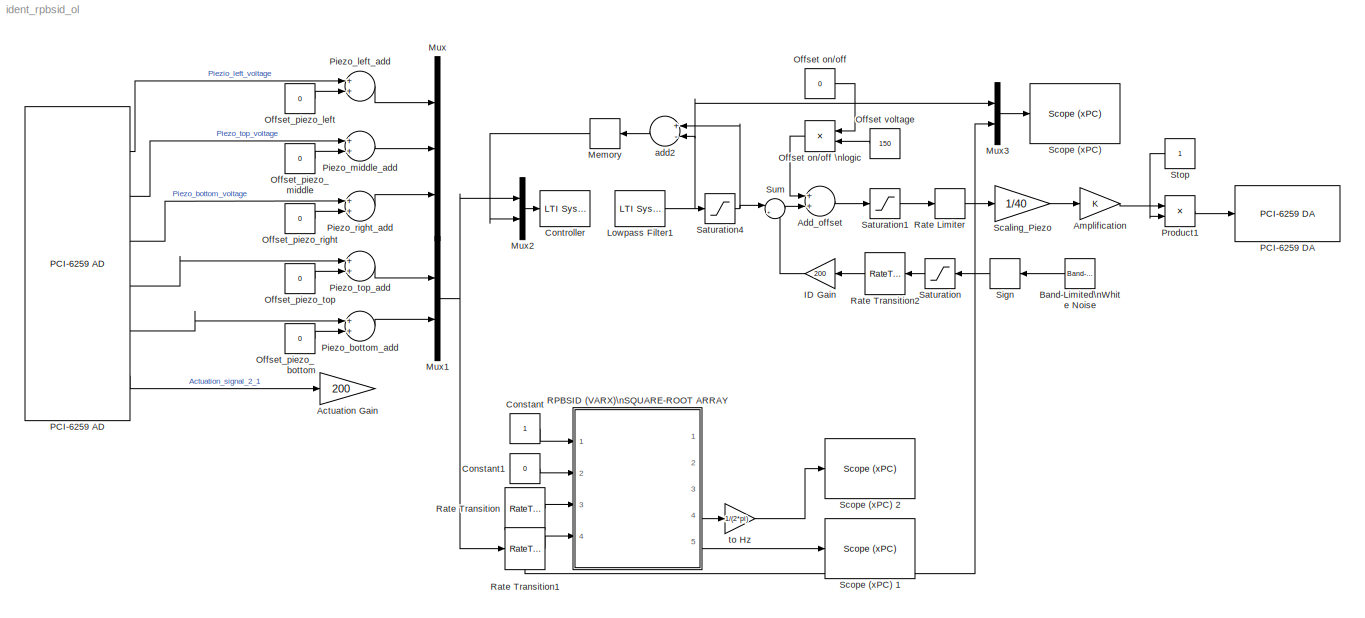
MODEL ident_rpbsid_ol
KIND model
BLOCK [Gain] Actuation Gain
  Gain = 200
  OutDataType = sfix(16)
  OutDataTypeMode = Inherit via internal rule
  OutDataTypeStr = Inherit: Inherit via internal rule
  OutScaling = 2^0
  ParamDataTypeStr = Inherit: Inherit via internal rule
  ParameterDataType = sfix(16)
  ParameterDataTypeMode = Inherit via internal rule
  ParameterScaling = 2^0
  SID = 1
  SaturateOnIntegerOverflow = off
BLOCK [Sum] Add_offset
  InputSameDT = off
  OutDataType = sfix(16)
  OutDataTypeMode = Inherit via internal rule
  OutDataTypeStr = Inherit: Inherit via internal rule
  OutScaling = 2^-10
  Ports = [2, 1]
  SID = 66
  SaturateOnIntegerOverflow = off
BLOCK [Gain] Amplification
  OutDataType = sfix(16)
  OutDataTypeMode = Inherit via internal rule
  OutDataTypeStr = Inherit: Inherit via internal rule
  OutScaling = 2^0
  ParamDataTypeStr = Inherit: Inherit via internal rule
  ParameterDataType = sfix(16)
  ParameterDataTypeMode = Inherit via internal rule
  ParameterScaling = 2^0
  SID = 67
  SaturateOnIntegerOverflow = off
BLOCK [Reference] Band-Limited\nWhite Noise  REF=simulink/Sources/Band-Limited\nWhite Noise
  Cov = 1
  FunctionWithSeparateData = off
  Ports = [0, 1]
  RTWMemSecDataConstants = Inherit from model
  RTWMemSecDataInternal = Inherit from model
  RTWMemSecDataParameters = Inherit from model
  RTWMemSecFuncExecute = Inherit from model
  RTWMemSecFuncInitTerm = Inherit from model
  SID = 149
  ShowPortLabels = FromPortIcon
  SourceBlock = simulink/Sources/Band-Limited\nWhite Noise
  SourceType = Band-Limited White Noise.
  SystemSampleTime = -1
  Ts = 0.25
  VectorParams1D = on
  seed = [23341]
BLOCK [Constant] Constant
  OutDataType = fixdt(1, 16)
  OutScaling = 2^0
  SID = 132
BLOCK [Constant] Constant1
  OutDataType = fixdt(1, 16)
  OutScaling = 2^0
  SID = 133
  Value = 0
BLOCK [Reference] Controller  REF=cstblocks/LTI System
  FunctionWithSeparateData = off
  IC = []
  Ports = [1, 1]
  RTWMemSecDataConstants = Inherit from model
  RTWMemSecDataInternal = Inherit from model
  RTWMemSecDataParameters = Inherit from model
  RTWMemSecFuncExecute = Inherit from model
  RTWMemSecFuncInitTerm = Inherit from model
  SID = 115
  ShowPortLabels = FromPortIcon
  SourceBlock = cstblocks/LTI System
  SourceType = LTI Block
  SystemSampleTime = -1
  sys = Cs
BLOCK [Gain] ID Gain
  Gain = 200
  OutDataType = sfix(16)
  OutDataTypeMode = Inherit via internal rule
  OutDataTypeStr = Inherit: Inherit via internal rule
  OutScaling = 2^0
  ParamDataTypeStr = Inherit: Inherit via internal rule
  ParameterDataType = sfix(16)
  ParameterDataTypeMode = Inherit via internal rule
  ParameterScaling = 2^0
  SID = 150
  SaturateOnIntegerOverflow = off
BLOCK [Reference] Lowpass Filter1  REF=cstblocks/LTI System
  FunctionWithSeparateData = off
  IC = []
  Ports = [1, 1]
  RTWMemSecDataConstants = Inherit from model
  RTWMemSecDataInternal = Inherit from model
  RTWMemSecDataParameters = Inherit from model
  RTWMemSecFuncExecute = Inherit from model
  RTWMemSecFuncInitTerm = Inherit from model
  SID = 125
  ShowPortLabels = FromPortIcon
  SourceBlock = cstblocks/LTI System
  SourceType = LTI Block
  SystemSampleTime = -1
  sys = Fs
BLOCK [Memory] Memory
  SID = 126
BLOCK [Mux] Mux
  DisplayOption = bar
  Inputs = 3
  Ports = [3, 1]
  SID = 14
BLOCK [Mux] Mux1
  DisplayOption = bar
  Inputs = 2
  Ports = [2, 1]
  SID = 15
BLOCK [Mux] Mux2
  DisplayOption = bar
  Inputs = 2
  Ports = [2, 1]
  SID = 117
BLOCK [Mux] Mux3
  DisplayOption = bar
  Inputs = 2
  Ports = [2, 1]
  SID = 119
BLOCK [Constant] Offset on//off
  OutDataType = sfix(16)
  OutDataTypeMode = boolean
  OutDataTypeStr = boolean
  OutScaling = 2^0
  SID = 85
  Value = 0
BLOCK [Product] Offset on//off \nlogic
  InputSameDT = off
  OutDataType = sfix(16)
  OutDataTypeMode = Inherit via internal rule
  OutDataTypeStr = Inherit: Inherit via internal rule
  OutScaling = 2^0
  Ports = [2, 1]
  SID = 86
  SaturateOnIntegerOverflow = off
BLOCK [Constant] Offset voltage
  OutDataType = sfix(16)
  OutScaling = 2^0
  SID = 87
  Value = 150
BLOCK [Constant] Offset_piezo_bottom
  OutDataType = sfix(16)
  OutScaling = 2^0
  SID = 16
  Value = 0
BLOCK [Constant] Offset_piezo_left
  OutDataType = sfix(16)
  OutScaling = 2^0
  SID = 17
  Value = 0
BLOCK [Constant] Offset_piezo_middle
  OutDataType = sfix(16)
  OutScaling = 2^0
  SID = 18
  Value = 0
BLOCK [Constant] Offset_piezo_right
  OutDataType = sfix(16)
  OutScaling = 2^0
  SID = 19
  Value = 0
BLOCK [Constant] Offset_piezo_top
  OutDataType = sfix(16)
  OutScaling = 2^0
  SID = 20
  Value = 0
BLOCK [Reference] PCI-6259 AD  REF=xpcnilib/A//D/M Series/PCI-6259 AD
  Ports = [0, 6]
  SID = 31
  SourceBlock = xpcnilib/A//D/M Series/PCI-6259 AD
  SourceType = adnipci6259
  channel = [17,18,19,20,21,22]
  coupling = [0]
  range = [10]
  sampletime = 0.005
  scantime = 5e-6
  slot = -1
BLOCK [Reference] PCI-6259 DA  REF=xpcnilib/D//A/M Series/PCI-6259 DA
  Ports = [1]
  SID = 105
  SourceBlock = xpcnilib/D//A/M Series/PCI-6259 DA
  SourceType = danipci6259
  channel = [3]
  initValue = [0]
  range = [10]
  reset = [1]
  sampletime = 0.005
  slot = -1
BLOCK [Sum] Piezo_bottom_add
  InputSameDT = off
  OutDataType = sfix(16)
  OutDataTypeMode = Inherit via internal rule
  OutDataTypeStr = Inherit: Inherit via internal rule
  OutScaling = 2^-10
  Ports = [2, 1]
  SID = 22
  SaturateOnIntegerOverflow = off
BLOCK [Sum] Piezo_left_add
  InputSameDT = off
  OutDataType = sfix(16)
  OutDataTypeMode = Inherit via internal rule
  OutDataTypeStr = Inherit: Inherit via internal rule
  OutScaling = 2^-10
  Ports = [2, 1]
  SID = 23
  SaturateOnIntegerOverflow = off
BLOCK [Sum] Piezo_middle_add
  InputSameDT = off
  OutDataType = sfix(16)
  OutDataTypeMode = Inherit via internal rule
  OutDataTypeStr = Inherit: Inherit via internal rule
  OutScaling = 2^-10
  Ports = [2, 1]
  SID = 24
  SaturateOnIntegerOverflow = off
BLOCK [Sum] Piezo_right_add
  InputSameDT = off
  OutDataType = sfix(16)
  OutDataTypeMode = Inherit via internal rule
  OutDataTypeStr = Inherit: Inherit via internal rule
  OutScaling = 2^-10
  Ports = [2, 1]
  SID = 25
  SaturateOnIntegerOverflow = off
BLOCK [Sum] Piezo_top_add
  InputSameDT = off
  OutDataType = sfix(16)
  OutDataTypeMode = Inherit via internal rule
  OutDataTypeStr = Inherit: Inherit via internal rule
  OutScaling = 2^-10
  Ports = [2, 1]
  SID = 26
  SaturateOnIntegerOverflow = off
BLOCK [Product] Product1
  InputSameDT = off
  OutDataType = sfix(16)
  OutDataTypeMode = Inherit via internal rule
  OutDataTypeStr = Inherit: Inherit via internal rule
  OutScaling = 2^0
  Ports = [2, 1]
  SID = 89
  SaturateOnIntegerOverflow = off
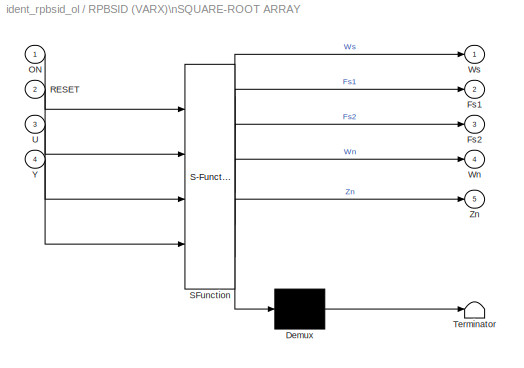
BLOCK [SubSystem] RPBSID (VARX)\nSQUARE-ROOT ARRAY
  FunctionWithSeparateData = off
  MaskDescription = Embedded MATLAB block
  MaskDisplay = disp('rpbsid');
  MaskHideContents = off
  MaskIconFrame = on
  MaskIconOpaque = off
  MaskIconRotate = none
  MaskIconUnits = autoscale
  MaskPortRotate = default
  MaskSelfModifiable = on
  MaskType = Stateflow
  MinAlgLoopOccurrences = off
  Opaque = off
  PermitHierarchicalResolution = ExplicitOnly
  Ports = [4, 5]
  PropExecContextOutsideSubsystem = off
  RTWSystemCode = Auto
  RequestExecContextInheritance = off
  SID = 139
BLOCK [Demux] RPBSID (VARX)\nSQUARE-ROOT ARRAY/ Demux 
  Outputs = 1
  Ports = [1, 1]
  SID = 19
BLOCK [S-Function] RPBSID (VARX)\nSQUARE-ROOT ARRAY/ SFunction 
  EnableBusSupport = on
  FunctionName = sf_sfun
  Parameters = W
  PortCounts = [4 6]
  Ports = [4, 6]
  SID = 18
  Tag = Stateflow S-Function ident_rpbsid_ol 2
BLOCK [Terminator] RPBSID (VARX)\nSQUARE-ROOT ARRAY/ Terminator 
  SID = 21
BLOCK [Outport] RPBSID (VARX)\nSQUARE-ROOT ARRAY/Fs1
  IconDisplay = Port number
  Port = 2
  SID = 10
BLOCK [Outport] RPBSID (VARX)\nSQUARE-ROOT ARRAY/Fs2
  IconDisplay = Port number
  Port = 3
  SID = 11
BLOCK [Inport] RPBSID (VARX)\nSQUARE-ROOT ARRAY/ON
  IconDisplay = Port number
  SID = 24
BLOCK [Inport] RPBSID (VARX)\nSQUARE-ROOT ARRAY/RESET
  IconDisplay = Port number
  Port = 2
  SID = 26
BLOCK [Inport] RPBSID (VARX)\nSQUARE-ROOT ARRAY/U
  IconDisplay = Port number
  OutDataType = sfix(16)
  OutScaling = 2^0
  Port = 3
  SID = 1
BLOCK [Outport] RPBSID (VARX)\nSQUARE-ROOT ARRAY/Wn
  IconDisplay = Port number
  OutDataType = sfix(16)
  OutScaling = 2^0
  Port = 4
  SID = 12
BLOCK [Outport] RPBSID (VARX)\nSQUARE-ROOT ARRAY/Ws
  IconDisplay = Port number
  SID = 9
BLOCK [Inport] RPBSID (VARX)\nSQUARE-ROOT ARRAY/Y
  IconDisplay = Port number
  OutDataType = sfix(16)
  OutScaling = 2^0
  Port = 4
  SID = 2
BLOCK [Outport] RPBSID (VARX)\nSQUARE-ROOT ARRAY/Zn
  IconDisplay = Port number
  OutDataType = sfix(16)
  OutScaling = 2^0
  Port = 5
  SID = 13
BLOCK [RateLimiter] Rate Limiter
  FallingSlewLimit = -10000
  RisingSlewLimit = 10000
  SID = 91
  SampleTimeMode = inherited
BLOCK [RateTransition] Rate Transition
  Deterministic = off
  Integrity = off
  OutPortSampleTime = 0.05
  SID = 146
BLOCK [RateTransition] Rate Transition1
  Deterministic = off
  Integrity = off
  OutPortSampleTime = 0.05
  SID = 147
BLOCK [RateTransition] Rate Transition2
  SID = 151
BLOCK [Saturate] Saturation
  LowerLimit = -1
  SID = 152
  UpperLimit = 1
BLOCK [Saturate] Saturation1
  LowerLimit = -290
  SID = 95
  UpperLimit = 290
BLOCK [Saturate] Saturation4
  LowerLimit = -290
  SID = 156
  UpperLimit = 290
BLOCK [Gain] Scaling_Piezo
  Gain = 1/40
  OutDataType = sfix(16)
  OutDataTypeMode = Inherit via internal rule
  OutDataTypeStr = Inherit: Inherit via internal rule
  OutScaling = 2^0
  ParamDataTypeStr = Inherit: Inherit via internal rule
  ParameterDataType = sfix(16)
  ParameterDataTypeMode = Inherit via internal rule
  ParameterScaling = 2^0
  SID = 98
  SaturateOnIntegerOverflow = off
BLOCK [Reference] Scope (xPC)   REF=xpclib/Misc./Scope (xPC) 
  FunctionWithSeparateData = off
  Ports = [1]
  RTWMemSecDataConstants = Inherit from model
  RTWMemSecDataInternal = Inherit from model
  RTWMemSecDataParameters = Inherit from model
  RTWMemSecFuncExecute = Inherit from model
  RTWMemSecFuncInitTerm = Inherit from model
  SID = 118
  ShowPortLabels = FromPortIcon
  SourceBlock = xpclib/Misc./Scope (xPC)
  SourceType = xpcscopeblock
  SystemSampleTime = -1
  autorestart = off
  autostart = on
  dynamicfilemode = off
  filename = data.dat
  formatstr = '%15.6f'
  grid = on
  interleave = 1
  maxwritefilesize = 512*1024^2
  mode = Lazy
  noprepostsamples = 0
  nosamples = 600
  scopeno = 1
  scopetype = Target
  triggerlevel = 0.0
  triggermode = FreeRun
  triggersample = 0
  triggerscope = 1
  triggersignal = 1
  triggerslope = Either
  viewmode = Graphical rolling
  writesize = 512
  ylimits = [-300,300]
BLOCK [Reference] Scope (xPC) 1  REF=xpclib/Misc./Scope (xPC) 
  FunctionWithSeparateData = off
  Ports = [1]
  RTWMemSecDataConstants = Inherit from model
  RTWMemSecDataInternal = Inherit from model
  RTWMemSecDataParameters = Inherit from model
  RTWMemSecFuncExecute = Inherit from model
  RTWMemSecFuncInitTerm = Inherit from model
  SID = 120
  ShowPortLabels = FromPortIcon
  SourceBlock = xpclib/Misc./Scope (xPC)
  SourceType = xpcscopeblock
  SystemSampleTime = -1
  autorestart = off
  autostart = on
  dynamicfilemode = off
  filename = data.dat
  formatstr = '%15.6f'
  grid = on
  interleave = 1
  maxwritefilesize = 512*1024^2
  mode = Lazy
  noprepostsamples = 0
  nosamples = 60
  scopeno = 2
  scopetype = Target
  triggerlevel = 0.0
  triggermode = FreeRun
  triggersample = 0
  triggerscope = 1
  triggersignal = 1
  triggerslope = Either
  viewmode = Graphical rolling
  writesize = 512
  ylimits = [-0.05,0.03]
BLOCK [Reference] Scope (xPC) 2  REF=xpclib/Misc./Scope (xPC) 
  FunctionWithSeparateData = off
  Ports = [1]
  RTWMemSecDataConstants = Inherit from model
  RTWMemSecDataInternal = Inherit from model
  RTWMemSecDataParameters = Inherit from model
  RTWMemSecFuncExecute = Inherit from model
  RTWMemSecFuncInitTerm = Inherit from model
  SID = 148
  ShowPortLabels = FromPortIcon
  SourceBlock = xpclib/Misc./Scope (xPC)
  SourceType = xpcscopeblock
  SystemSampleTime = -1
  autorestart = off
  autostart = on
  dynamicfilemode = off
  filename = data.dat
  formatstr = '%15.6f'
  grid = on
  interleave = 1
  maxwritefilesize = 512*1024^2
  mode = Lazy
  noprepostsamples = 0
  nosamples = 60
  scopeno = 3
  scopetype = Target
  triggerlevel = 0.0
  triggermode = FreeRun
  triggersample = 0
  triggerscope = 1
  triggersignal = 1
  triggerslope = Either
  viewmode = Graphical rolling
  writesize = 512
  ylimits = [2,3.5]
BLOCK [Signum] Sign
  SID = 153
BLOCK [Constant] Stop
  OutDataType = sfix(16)
  OutScaling = 2^0
  SID = 102
BLOCK [Sum] Sum
  IconShape = round
  InputSameDT = off
  Inputs = |++
  OutDataType = fixdt(1, 16)
  OutDataTypeMode = Inherit via internal rule
  OutDataTypeStr = Inherit: Inherit via internal rule
  OutScaling = 2^0
  Ports = [2, 1]
  SID = 155
  SaturateOnIntegerOverflow = off
BLOCK [Sum] add2
  InputSameDT = off
  Inputs = +-
  OutDataType = sfix(16)
  OutDataTypeMode = Inherit via internal rule
  OutDataTypeStr = Inherit: Inherit via internal rule
  OutScaling = 2^-10
  Ports = [2, 1]
  SID = 131
  SaturateOnIntegerOverflow = off
BLOCK [Gain] to Hz
  Gain = 1/(2*pi)
  OutDataType = fixdt(1, 16)
  OutDataTypeMode = Inherit via internal rule
  OutDataTypeStr = Inherit: Inherit via internal rule
  OutScaling = 2^0
  ParamDataTypeStr = Inherit: Inherit via internal rule
  ParameterDataType = fixdt(1, 16)
  ParameterDataTypeMode = Inherit via internal rule
  ParameterScaling = 2^0
  SID = 143
  SaturateOnIntegerOverflow = off
LINE Add_offset:1 -> Saturation1:1
LINE Amplification:1 -> Product1:1
LINE Band-Limited\nWhite Noise:1 -> Sign:1
LINE Constant1:1 -> RPBSID (VARX)\nSQUARE-ROOT ARRAY:2
LINE Constant:1 -> RPBSID (VARX)\nSQUARE-ROOT ARRAY:1
LINE ID Gain:1 -> Sum:2
NET Lowpass Filter1:1 -> Mux3:1, Saturation4:1, add2:2
LINE Memory:1 -> Mux2:2
NET Mux1:1 -> Mux2:1, Rate Transition1:1
LINE Mux2:1 -> Controller:1
LINE Mux3:1 -> Scope (xPC) :1
LINE Offset on//off \nlogic:1 -> Add_offset:1
LINE Offset on//off:1 -> Offset on//off \nlogic:1
LINE Offset voltage:1 -> Offset on//off \nlogic:2
LINE Offset_piezo_bottom:1 -> Piezo_bottom_add:2
LINE Offset_piezo_left:1 -> Piezo_left_add:2
LINE Offset_piezo_middle:1 -> Piezo_middle_add:2
LINE Offset_piezo_right:1 -> Piezo_right_add:2
LINE Offset_piezo_top:1 -> Piezo_top_add:2
LINE PCI-6259 AD:1 -> Piezo_left_add:1
LINE PCI-6259 AD:2 -> Piezo_middle_add:1
LINE PCI-6259 AD:3 -> Piezo_right_add:1
LINE PCI-6259 AD:4 -> Piezo_top_add:1
LINE PCI-6259 AD:5 -> Piezo_bottom_add:1
LINE PCI-6259 AD:6 -> Actuation Gain:1
LINE Piezo_bottom_add:1 -> Mux1:2
LINE Piezo_left_add:1 -> Mux:1
LINE Piezo_middle_add:1 -> Mux:2
LINE Piezo_right_add:1 -> Mux:3
LINE Piezo_top_add:1 -> Mux1:1
LINE Product1:1 -> PCI-6259 DA:1
LINE RPBSID (VARX)\nSQUARE-ROOT ARRAY/ Demux :1 -> RPBSID (VARX)\nSQUARE-ROOT ARRAY/ Terminator :1
LINE RPBSID (VARX)\nSQUARE-ROOT ARRAY/ SFunction :1 -> RPBSID (VARX)\nSQUARE-ROOT ARRAY/ Demux :1
LINE RPBSID (VARX)\nSQUARE-ROOT ARRAY/ SFunction :2 -> RPBSID (VARX)\nSQUARE-ROOT ARRAY/Ws:1
LINE RPBSID (VARX)\nSQUARE-ROOT ARRAY/ SFunction :3 -> RPBSID (VARX)\nSQUARE-ROOT ARRAY/Fs1:1
LINE RPBSID (VARX)\nSQUARE-ROOT ARRAY/ SFunction :4 -> RPBSID (VARX)\nSQUARE-ROOT ARRAY/Fs2:1
LINE RPBSID (VARX)\nSQUARE-ROOT ARRAY/ SFunction :5 -> RPBSID (VARX)\nSQUARE-ROOT ARRAY/Wn:1
LINE RPBSID (VARX)\nSQUARE-ROOT ARRAY/ SFunction :6 -> RPBSID (VARX)\nSQUARE-ROOT ARRAY/Zn:1
LINE RPBSID (VARX)\nSQUARE-ROOT ARRAY/ON:1 -> RPBSID (VARX)\nSQUARE-ROOT ARRAY/ SFunction :1
LINE RPBSID (VARX)\nSQUARE-ROOT ARRAY/RESET:1 -> RPBSID (VARX)\nSQUARE-ROOT ARRAY/ SFunction :2
LINE RPBSID (VARX)\nSQUARE-ROOT ARRAY/U:1 -> RPBSID (VARX)\nSQUARE-ROOT ARRAY/ SFunction :3
LINE RPBSID (VARX)\nSQUARE-ROOT ARRAY/Y:1 -> RPBSID (VARX)\nSQUARE-ROOT ARRAY/ SFunction :4
LINE RPBSID (VARX)\nSQUARE-ROOT ARRAY:4 -> to Hz:1
LINE RPBSID (VARX)\nSQUARE-ROOT ARRAY:5 -> Scope (xPC) 1:1
NET Rate Limiter:1 -> Mux3:2, Rate Transition:1, Scaling_Piezo:1
LINE Rate Transition1:1 -> RPBSID (VARX)\nSQUARE-ROOT ARRAY:4
LINE Rate Transition2:1 -> ID Gain:1
LINE Rate Transition:1 -> RPBSID (VARX)\nSQUARE-ROOT ARRAY:3
LINE Saturation1:1 -> Rate Limiter:1
NET Saturation4:1 -> Sum:1, add2:1
LINE Saturation:1 -> Rate Transition2:1
LINE Scaling_Piezo:1 -> Amplification:1
LINE Sign:1 -> Saturation:1
LINE Stop:1 -> Product1:2
LINE Sum:1 -> Add_offset:2
LINE add2:1 -> Memory:1
LINE to Hz:1 -> Scope (xPC) 2:1
note: NET lines group one-source signal fan-out (src -> all destinations, sorted); 1:1 wires keep LINE
CHART RPBSID (VARX)\nSQUARE-ROOT ARRAY states=1 transitions=1
  STATE_LABEL 'eML_blk_kernel()'
